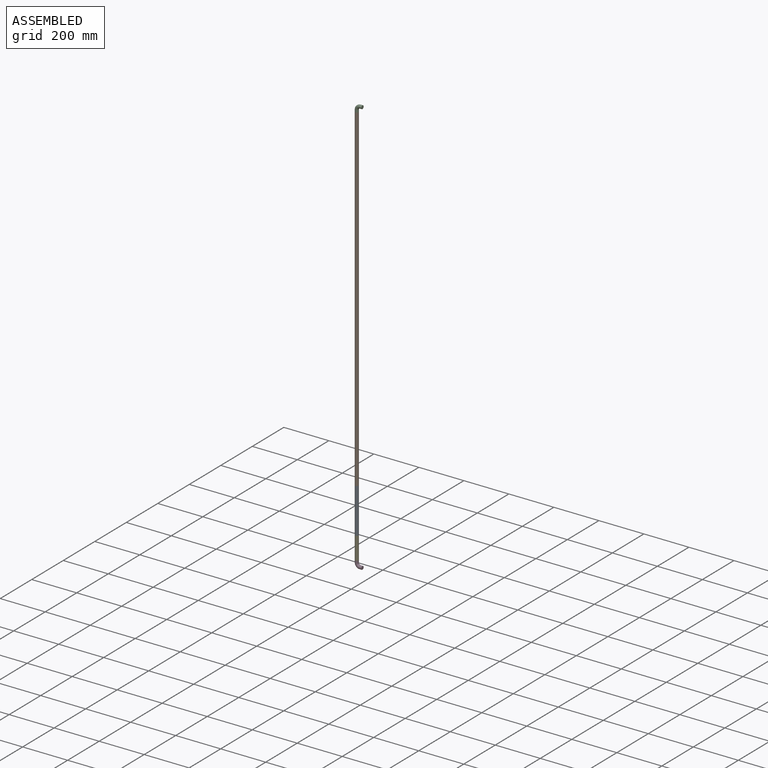
[diagram: assembled view]
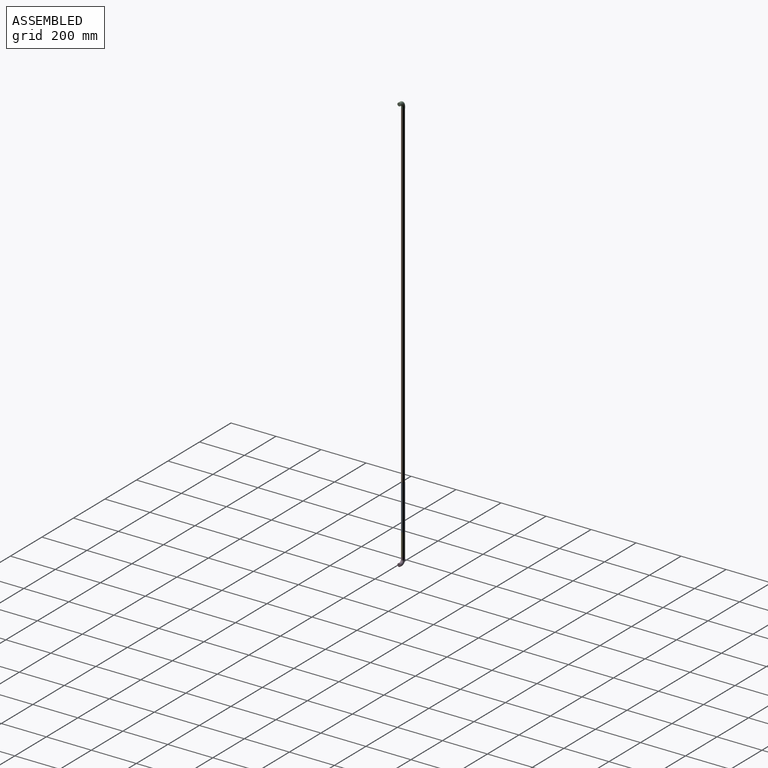
[diagram: assembled view, second angle]
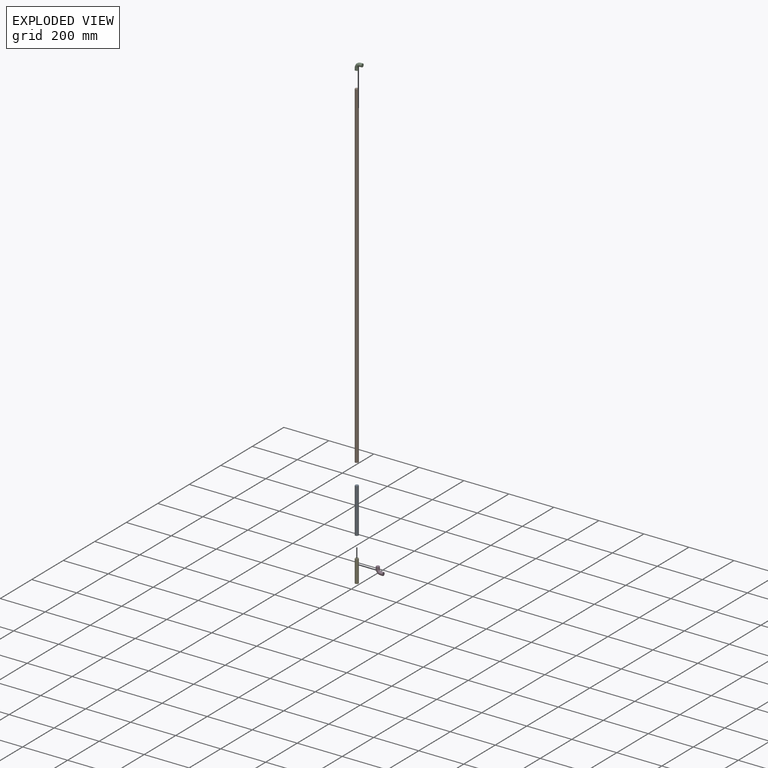
[diagram: exploded view]
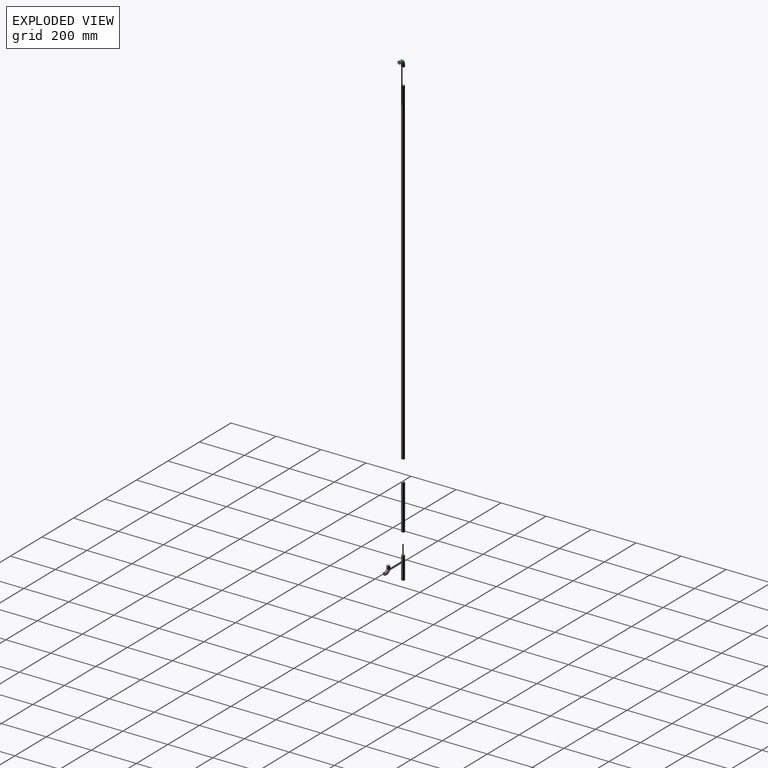
[diagram: exploded view, second angle]
ASSEMBLY  parts=5 mates=3
PART A: 3 faces, bbox 15x200x15 mm
  f0: cylinder r=7.5mm len=200mm, axis (0,1,0), area 9424.8mm2, adj f1,f2
  f1: plane 15x15mm, normal (0,-1,0), area 176.7mm2, adj f0
  f2: plane 15x15mm, normal (0,1,0), area 176.7mm2, adj f0
PART B: 3 faces, bbox 15x1500x15 mm
  f0: cylinder r=7.5mm len=1500mm, axis (0,1,0), area 70685.8mm2, adj f1,f2
  f1: plane 15x15mm, normal (0,-1,0), area 176.7mm2, adj f0
  f2: plane 15x15mm, normal (0,1,0), area 176.7mm2, adj f0
PART C: 5 faces, bbox 34.4x34.4x15 mm
  f0: plane 15x15mm, normal (0,-1,0), area 176.7mm2, adj f2
  f1: plane 15x15mm, normal (1,0,0), area 176.7mm2, adj f4
  f2: cylinder r=7.5mm len=15mm, axis (0,1,0), area 471.2mm2, adj f0,f3
  f3: torus R=15mm, axis (0,0,-1), area 1110.3mm2, adj f2,f4
  f4: cylinder r=7.5mm len=15mm, axis (1,0,0), area 471.2mm2, adj f1,f3
PART D: same geometry as C
PART E: 3 faces, bbox 15x100x15 mm
  f0: cylinder r=7.5mm len=100mm, axis (0,1,0), area 4712.4mm2, adj f1,f2
  f1: plane 15x15mm, normal (0,-1,0), area 176.7mm2, adj f0
  f2: plane 15x15mm, normal (0,1,0), area 176.7mm2, adj f0
PLACE A rot(axis=(1,0,0),90deg) t=(-113.57,86.59,-1250)mm
PLACE B rot(axis=(1,0,0),90deg) t=(36.43,86.59,250)mm
PLACE C rot(axis=(-0.58,0.58,0.58),120deg) t=(-25,50,275)mm
PLACE D rot(axis=(0.58,-0.58,0.58),120deg) t=(-25,50,-1575)mm
PLACE E rot(axis=(-1,0,0),90deg) t=(-13.57,13.41,-1550)mm
MATE fastened E.f0 <-> A.f0  axis (0,0,1) through (-50,50,-1450)mm
MATE fastened B.f0 <-> C.f4  axis (0,0,1) through (-50,50,250)mm
MATE fastened A.f0 <-> B.f0  axis (0,0,1) through (-50,50,-1250)mm
